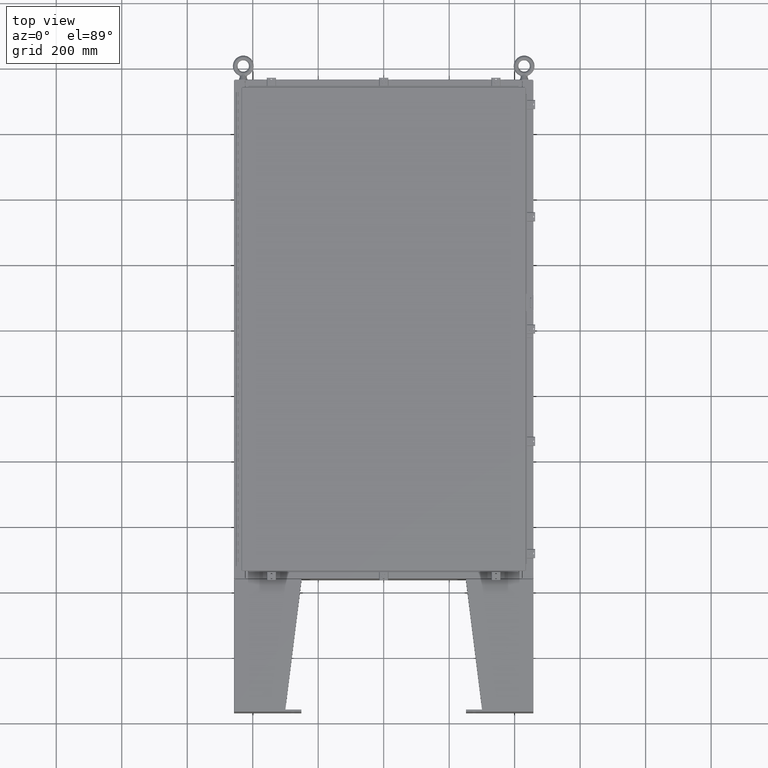
[diagram: clean part render]
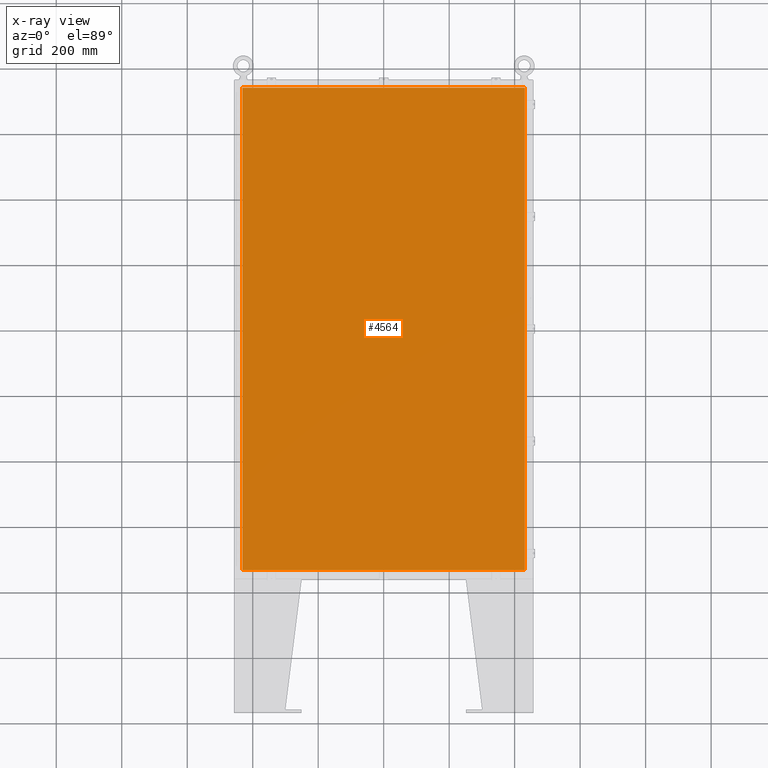
[diagram: x-ray — body ghosted, one internal face saturated and labeled with its STEP entity id]
A machine part, top view, then the same camera in x-ray: the body is ghosted and one INTERNAL B-rep face — a face not visible from any outside direction — is saturated and labeled: STEP entity #4564.
In plain terms, the highlighted planar face has unit normal (0, 0, -1).
Its self-contained STEP definition (entity closure, byte-faithful):
#515 = CARTESIAN_POINT ( 'NONE',  ( -16.99029999999999800, -29.00630000000000000, -0.07470000000000000300 ) ) ;
#1048 = VERTEX_POINT ( 'NONE', #33301 ) ;
#1950 = VECTOR ( 'NONE', #48832, 39.37007874015748100 ) ;
#3859 = EDGE_LOOP ( 'NONE', ( #40402, #30197, #40174, #50093 ) ) ;
#4564 = ADVANCED_FACE ( 'NONE', ( #43513 ), #45118, .T. ) ;
#5779 = LINE ( 'NONE', #63864, #46041 ) ;
#7822 = EDGE_CURVE ( 'NONE', #34200, #51586, #29865, .T. ) ;
#13616 = CARTESIAN_POINT ( 'NONE',  ( -16.99029999999999800, -29.00630000000000300, -0.07469999999999804600 ) ) ;
#16317 = LINE ( 'NONE', #18606, #56477 ) ;
#18606 = CARTESIAN_POINT ( 'NONE',  ( -16.99029999999999400, 29.00630000000000000, -0.07469999999999582500 ) ) ;
#20929 = DIRECTION ( 'NONE',  ( 0.0000000000000000000, 0.0000000000000000000, -1.000000000000000000 ) ) ;
#27351 = DIRECTION ( 'NONE',  ( 0.0000000000000000000, 1.000000000000000000, 0.0000000000000000000 ) ) ;
#29865 = LINE ( 'NONE', #13616, #1950 ) ;
#29890 = CARTESIAN_POINT ( 'NONE',  ( 16.99030000000000500, 29.00630000000000000, -0.07470000000000000300 ) ) ;
#30197 = ORIENTED_EDGE ( 'NONE', *, *, #7822, .F. ) ;
#33166 = VECTOR ( 'NONE', #66598, 39.37007874015748100 ) ;
#33301 = CARTESIAN_POINT ( 'NONE',  ( -16.99029999999999400, 29.00630000000000000, -0.07470000000000000300 ) ) ;
#33953 = VERTEX_POINT ( 'NONE', #29890 ) ;
#34200 = VERTEX_POINT ( 'NONE', #515 ) ;
#35444 = CARTESIAN_POINT ( 'NONE',  ( 16.99030000000000500, 29.00630000000000300, -0.07469999999999804600 ) ) ;
#36310 = EDGE_CURVE ( 'NONE', #51586, #33953, #5779, .T. ) ;
#38114 = DIRECTION ( 'NONE',  ( -1.000000000000000000, 0.0000000000000000000, -0.0000000000000000000 ) ) ;
#40174 = ORIENTED_EDGE ( 'NONE', *, *, #50031, .F. ) ;
#40402 = ORIENTED_EDGE ( 'NONE', *, *, #36310, .F. ) ;
#43513 = FACE_OUTER_BOUND ( 'NONE', #3859, .T. ) ;
#45118 = PLANE ( 'NONE',  #51491 ) ;
#46041 = VECTOR ( 'NONE', #27351, 39.37007874015748100 ) ;
#48832 = DIRECTION ( 'NONE',  ( 1.000000000000000000, -0.0000000000000000000, -0.0000000000000000000 ) ) ;
#50031 = EDGE_CURVE ( 'NONE', #1048, #34200, #16317, .T. ) ;
#50072 = DIRECTION ( 'NONE',  ( 0.0000000000000000000, -1.000000000000000000, 0.0000000000000000000 ) ) ;
#50093 = ORIENTED_EDGE ( 'NONE', *, *, #54462, .F. ) ;
#51491 = AXIS2_PLACEMENT_3D ( 'NONE', #56546, #20929, #38114 ) ;
#51586 = VERTEX_POINT ( 'NONE', #63273 ) ;
#54462 = EDGE_CURVE ( 'NONE', #33953, #1048, #60856, .T. ) ;
#56477 = VECTOR ( 'NONE', #50072, 39.37007874015748100 ) ;
#56546 = CARTESIAN_POINT ( 'NONE',  ( 0.0000000000000000000, 0.0000000000000000000, -0.07470000000000000300 ) ) ;
#60856 = LINE ( 'NONE', #35444, #33166 ) ;
#63273 = CARTESIAN_POINT ( 'NONE',  ( 16.99030000000000500, -29.00630000000000000, -0.07470000000000000300 ) ) ;
#63864 = CARTESIAN_POINT ( 'NONE',  ( 16.99030000000000500, -29.00630000000000000, -0.07470000000000019700 ) ) ;
#66598 = DIRECTION ( 'NONE',  ( -1.000000000000000000, -0.0000000000000000000, -0.0000000000000000000 ) ) ;